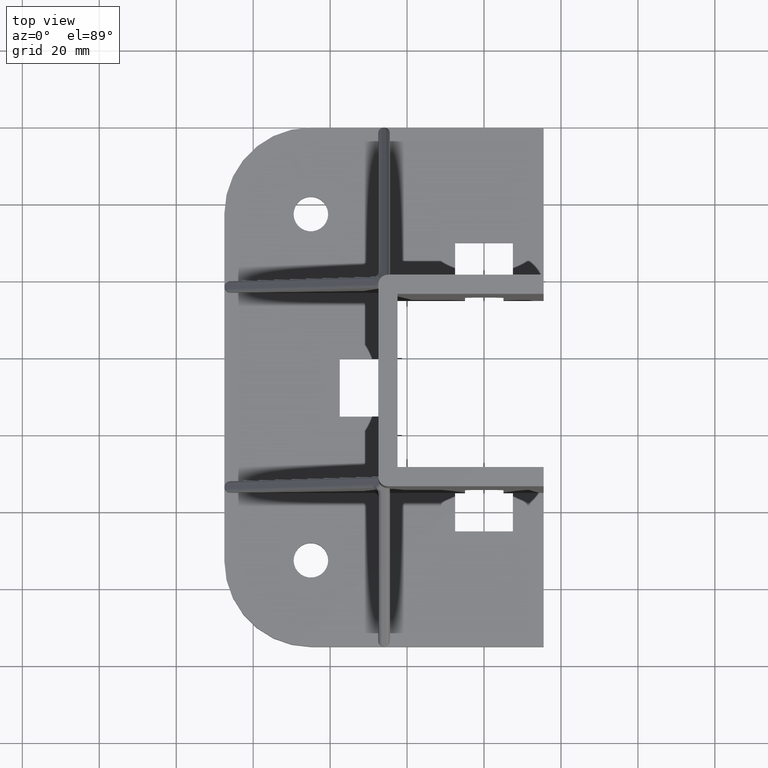
[diagram: clean part render]
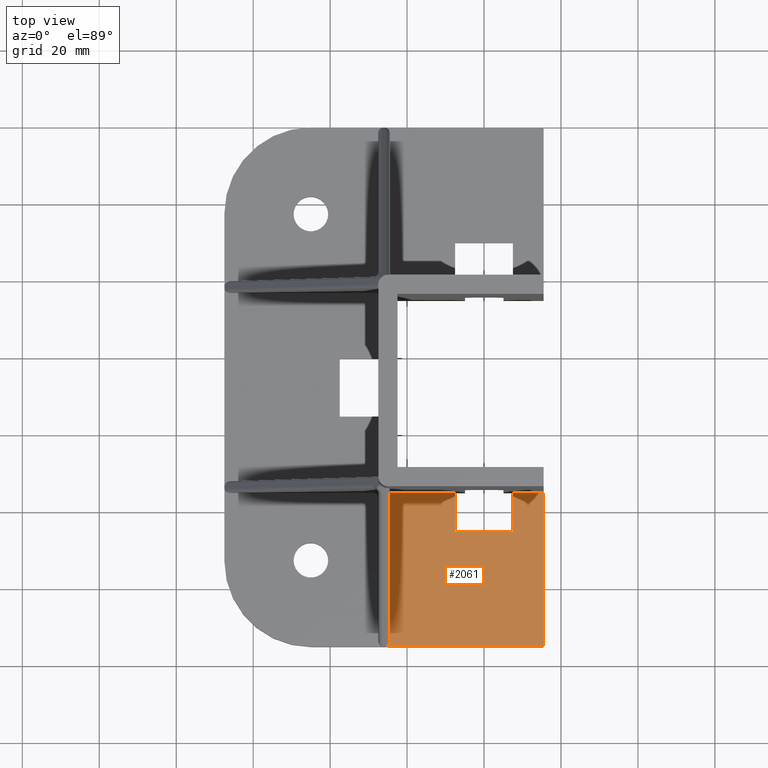
[diagram: same view with one face highlighted and labeled with its STEP entity id]
A machine part, top view. The second image highlights one B-rep face of the part: STEP entity #2061.
In plain terms, the highlighted planar face has unit normal (0, 0, 1).
Its self-contained STEP definition (entity closure, byte-faithful):
#48=B_SPLINE_CURVE_WITH_KNOTS('',3,(#2917,#2918,#2919,#2920,#2921,#2922),
 .UNSPECIFIED.,.F.,.F.,(4,2,4),(-0.0491359485914957,-0.0245707226377098,
0.),.UNSPECIFIED.);
#49=B_SPLINE_CURVE_WITH_KNOTS('',3,(#2924,#2925,#2926,#2927,#2928,#2929,
#2930,#2931),.UNSPECIFIED.,.F.,.F.,(4,2,2,4),(-0.0747167519577202,-0.0368728687500234,
0.,0.0002713905961877),.UNSPECIFIED.);
#175=PLANE('',#2205);
#229=FACE_OUTER_BOUND('',#337,.T.);
#337=EDGE_LOOP('',(#1454,#1455,#1456,#1457,#1458,#1459,#1460,#1461,#1462,
#1463,#1464));
#474=LINE('',#2868,#641);
#492=LINE('',#2903,#659);
#493=LINE('',#2905,#660);
#494=LINE('',#2907,#661);
#495=LINE('',#2909,#662);
#496=LINE('',#2911,#663);
#497=LINE('',#2913,#664);
#498=LINE('',#2932,#665);
#641=VECTOR('',#2412,10.);
#659=VECTOR('',#2438,16.999965999931);
#660=VECTOR('',#2439,9.99997999995999);
#661=VECTOR('',#2440,14.9999699999409);
#662=VECTOR('',#2441,9.99997999995999);
#663=VECTOR('',#2442,16.9999659999319);
#664=VECTOR('',#2443,38.4999229998461);
#665=VECTOR('',#2446,51.999895999792);
#776=CIRCLE('',#2206,1.49999699999405);
#855=VERTEX_POINT('',#2864);
#857=VERTEX_POINT('',#2867);
#870=VERTEX_POINT('',#2902);
#871=VERTEX_POINT('',#2904);
#872=VERTEX_POINT('',#2906);
#873=VERTEX_POINT('',#2908);
#874=VERTEX_POINT('',#2910);
#875=VERTEX_POINT('',#2912);
#876=VERTEX_POINT('',#2914);
#877=VERTEX_POINT('',#2916);
#878=VERTEX_POINT('',#2923);
#1084=EDGE_CURVE('',#857,#855,#474,.T.);
#1102=EDGE_CURVE('',#870,#855,#492,.T.);
#1103=EDGE_CURVE('',#870,#871,#493,.T.);
#1104=EDGE_CURVE('',#871,#872,#494,.T.);
#1105=EDGE_CURVE('',#873,#872,#495,.T.);
#1106=EDGE_CURVE('',#874,#873,#496,.T.);
#1107=EDGE_CURVE('',#875,#874,#497,.T.);
#1108=EDGE_CURVE('',#876,#875,#776,.T.);
#1109=EDGE_CURVE('',#876,#877,#48,.T.);
#1110=EDGE_CURVE('',#877,#878,#49,.T.);
#1111=EDGE_CURVE('',#878,#857,#498,.T.);
#1454=ORIENTED_EDGE('',*,*,#1084,.T.);
#1455=ORIENTED_EDGE('',*,*,#1102,.F.);
#1456=ORIENTED_EDGE('',*,*,#1103,.T.);
#1457=ORIENTED_EDGE('',*,*,#1104,.T.);
#1458=ORIENTED_EDGE('',*,*,#1105,.F.);
#1459=ORIENTED_EDGE('',*,*,#1106,.F.);
#1460=ORIENTED_EDGE('',*,*,#1107,.F.);
#1461=ORIENTED_EDGE('',*,*,#1108,.F.);
#1462=ORIENTED_EDGE('',*,*,#1109,.T.);
#1463=ORIENTED_EDGE('',*,*,#1110,.T.);
#1464=ORIENTED_EDGE('',*,*,#1111,.T.);
#2061=ADVANCED_FACE('',(#229),#175,.T.);
#2205=AXIS2_PLACEMENT_3D('',#2901,#2436,#2437);
#2206=AXIS2_PLACEMENT_3D('',#2915,#2444,#2445);
#2412=DIRECTION('',(0.,1.,0.));
#2436=DIRECTION('center_axis',(0.,0.,1.));
#2437=DIRECTION('ref_axis',(1.,0.,0.));
#2438=DIRECTION('',(1.,0.,0.));
#2439=DIRECTION('',(0.,-1.,0.));
#2440=DIRECTION('',(-1.,0.,0.));
#2441=DIRECTION('',(0.,-1.,0.));
#2442=DIRECTION('',(1.,0.,0.));
#2443=DIRECTION('',(0.,1.,0.));
#2444=DIRECTION('center_axis',(0.,0.,1.));
#2445=DIRECTION('ref_axis',(1.,0.,0.));
#2446=DIRECTION('',(1.,0.,0.));
#2864=CARTESIAN_POINT('',(15.49986499973,-94.9998099996202,5.99998799997638));
#2867=CARTESIAN_POINT('',(15.49986499973,-134.99972999946,5.99998799997638));
#2868=CARTESIAN_POINT('',(15.49986499973,-121.749758862101,5.99998799997638));
#2901=CARTESIAN_POINT('Origin',(-80.9998427246257,-148.499707724581,5.99998799997638));
#2902=CARTESIAN_POINT('',(7.49998499997082,-94.9998099996202,5.99998799997638));
#2903=CARTESIAN_POINT('',(7.49998499997082,-94.9998099996202,5.99998799997638));
#2904=CARTESIAN_POINT('',(7.49998499997082,-104.99978999958,5.99998799997638));
#2905=CARTESIAN_POINT('',(7.49998499997082,-94.9998099996202,5.99998799997638));
#2906=CARTESIAN_POINT('',(-7.49998499997008,-104.99978999958,5.99998799997638));
#2907=CARTESIAN_POINT('',(7.49998499997082,-104.99978999958,5.99998799997638));
#2908=CARTESIAN_POINT('',(-7.49998499997008,-94.9998099996202,5.99998799997638));
#2909=CARTESIAN_POINT('',(-7.49998499997008,-94.9998099996202,5.99998799997638));
#2910=CARTESIAN_POINT('',(-24.499950999902,-94.9998099996202,5.99998799997638));
#2911=CARTESIAN_POINT('',(-24.499950999902,-94.9998099996202,5.99998799997638));
#2912=CARTESIAN_POINT('',(-24.499950999902,-133.499732999466,5.99998799997638));
#2913=CARTESIAN_POINT('',(-24.499950999902,-133.499732999466,5.99998799997638));
#2914=CARTESIAN_POINT('',(-24.9353361211398,-134.556595315548,6.00012087990337));
#2915=CARTESIAN_POINT('Origin',(-25.999947999896,-133.499732999466,5.99998799997638));
#2916=CARTESIAN_POINT('',(-25.4233165254532,-134.884466599359,5.99998799997638));
#2917=CARTESIAN_POINT('Ctrl Pts',(-24.9353889288637,-134.556474451477,5.99998799997638));
#2918=CARTESIAN_POINT('Ctrl Pts',(-24.9934719546794,-134.614181294728,5.99998799997638));
#2919=CARTESIAN_POINT('Ctrl Pts',(-25.0495935116023,-134.668276239429,5.99998799997638));
#2920=CARTESIAN_POINT('Ctrl Pts',(-25.2765844245894,-134.820894933877,5.99998799997638));
#2921=CARTESIAN_POINT('Ctrl Pts',(-25.3479311493048,-134.852450203107,5.99998799997638));
#2922=CARTESIAN_POINT('Ctrl Pts',(-25.4233165254532,-134.884466599359,5.99998799997638));
#2923=CARTESIAN_POINT('',(-25.999947999896,-134.99972999946,5.99998799997638));
#2924=CARTESIAN_POINT('Ctrl Pts',(-25.4233165254534,-134.884466599359,5.99998799997638));
#2925=CARTESIAN_POINT('Ctrl Pts',(-25.5363604091973,-134.93154039129,5.99998799997638));
#2926=CARTESIAN_POINT('Ctrl Pts',(-25.6330834461886,-134.956088919873,5.99998799997638));
#2927=CARTESIAN_POINT('Ctrl Pts',(-25.7769047637095,-134.984801761846,5.99998799997638));
#2928=CARTESIAN_POINT('Ctrl Pts',(-25.8743247274592,-134.999511180234,5.99998799997638));
#2929=CARTESIAN_POINT('Ctrl Pts',(-25.9981387333213,-134.999729203997,5.99998799997638));
#2930=CARTESIAN_POINT('Ctrl Pts',(-25.9990433645754,-134.99972999946,5.99998799997638));
#2931=CARTESIAN_POINT('Ctrl Pts',(-25.999947999896,-134.99972999946,5.99998799997638));
#2932=CARTESIAN_POINT('',(-25.999947999896,-134.99972999946,5.99998799997638));